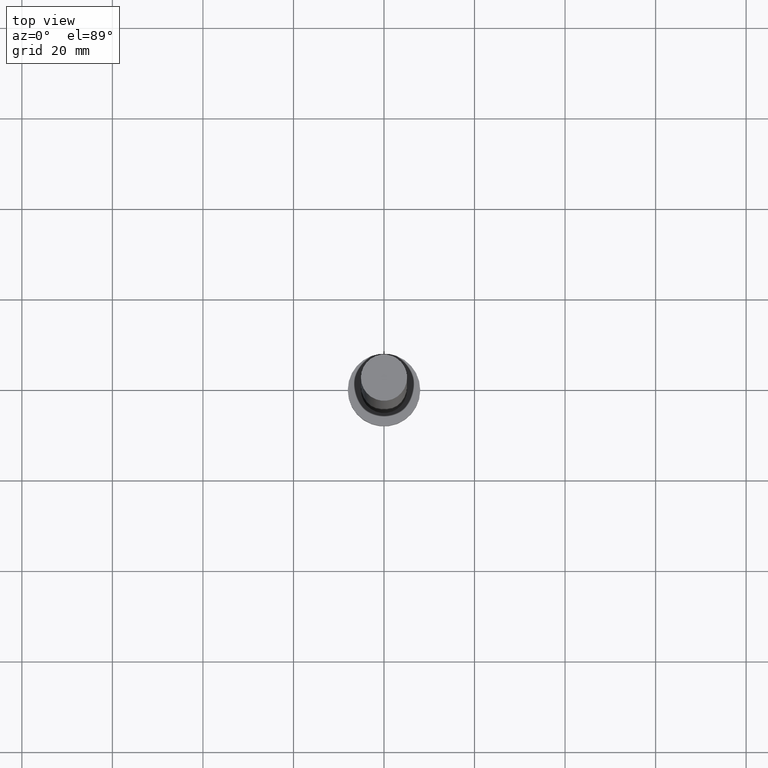
[diagram: clean part render]
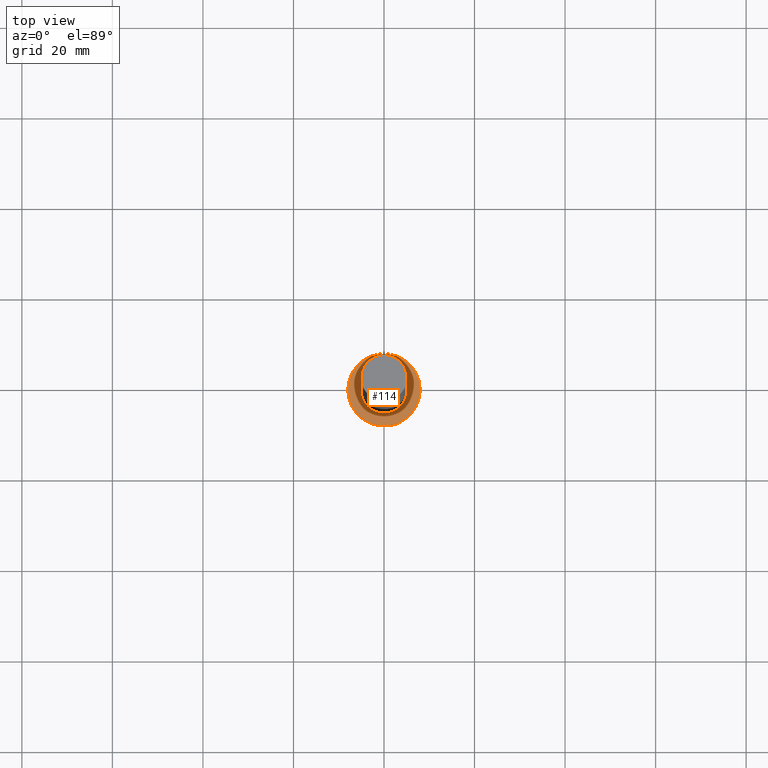
[diagram: same view with one face highlighted and labeled with its STEP entity id]
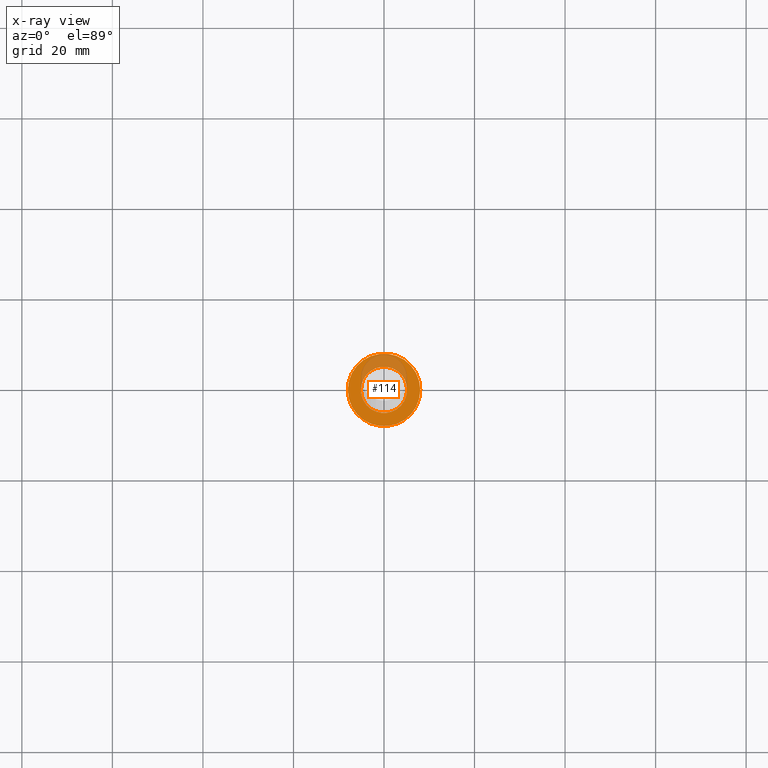
[diagram: x-ray of the same camera — body ghosted, the highlighted face saturated]
A machine part, top view. The second image highlights one B-rep face of the part: STEP entity #114.
The next image is the same camera in x-ray: the body ghosted, the highlighted face saturated — about 23% of this face is hidden behind the body in this view.
In plain terms, the highlighted planar face has unit normal (0, 0, 1).
Its self-contained STEP definition (entity closure, byte-faithful):
#12 = DIRECTION ( 'NONE',  ( 1.000000000000000000, 0.000000000000000000, 0.000000000000000000 ) ) ;
#14 = EDGE_LOOP ( 'NONE', ( #113, #178 ) ) ;
#18 = VERTEX_POINT ( 'NONE', #121 ) ;
#28 = AXIS2_PLACEMENT_3D ( 'NONE', #146, #196, #217 ) ;
#29 = AXIS2_PLACEMENT_3D ( 'NONE', #88, #164, #12 ) ;
#42 = DIRECTION ( 'NONE',  ( 1.000000000000000000, 0.000000000000000000, -0.000000000000000000 ) ) ;
#46 = CARTESIAN_POINT ( 'NONE',  ( 0.000000000000000000, 0.000000000000000000, 5.000000000000000000 ) ) ;
#48 = AXIS2_PLACEMENT_3D ( 'NONE', #65, #87, #83 ) ;
#62 = PLANE ( 'NONE',  #191 ) ;
#65 = CARTESIAN_POINT ( 'NONE',  ( 0.000000000000000000, 0.000000000000000000, 5.000000000000000000 ) ) ;
#67 = CARTESIAN_POINT ( 'NONE',  ( -5.100000000000001421, 0.000000000000000000, 5.000000000000000000 ) ) ;
#80 = EDGE_LOOP ( 'NONE', ( #175, #209 ) ) ;
#81 = AXIS2_PLACEMENT_3D ( 'NONE', #224, #219, #197 ) ;
#83 = DIRECTION ( 'NONE',  ( 1.000000000000000000, 0.000000000000000000, 0.000000000000000000 ) ) ;
#87 = DIRECTION ( 'NONE',  ( 0.000000000000000000, 0.000000000000000000, 1.000000000000000000 ) ) ;
#88 = CARTESIAN_POINT ( 'NONE',  ( 0.000000000000000000, 0.000000000000000000, 5.000000000000000000 ) ) ;
#98 = VERTEX_POINT ( 'NONE', #67 ) ;
#99 = CIRCLE ( 'NONE', #81, 8.000000000000000000 ) ;
#100 = EDGE_CURVE ( 'NONE', #98, #18, #249, .T. ) ;
#105 = EDGE_CURVE ( 'NONE', #18, #98, #161, .T. ) ;
#113 = ORIENTED_EDGE ( 'NONE', *, *, #100, .F. ) ;
#114 = ADVANCED_FACE ( 'NONE', ( #165, #200 ), #62, .T. ) ;
#121 = CARTESIAN_POINT ( 'NONE',  ( 5.100000000000001421, 6.245698675651502811E-16, 5.000000000000000000 ) ) ;
#143 = CARTESIAN_POINT ( 'NONE',  ( 8.000000000000000000, 9.797174393178825657E-16, 5.000000000000000000 ) ) ;
#146 = CARTESIAN_POINT ( 'NONE',  ( 0.000000000000000000, 0.000000000000000000, 5.000000000000000000 ) ) ;
#159 = VERTEX_POINT ( 'NONE', #143 ) ;
#161 = CIRCLE ( 'NONE', #48, 5.100000000000001421 ) ;
#164 = DIRECTION ( 'NONE',  ( 0.000000000000000000, 0.000000000000000000, 1.000000000000000000 ) ) ;
#165 = FACE_BOUND ( 'NONE', #14, .T. ) ;
#170 = CARTESIAN_POINT ( 'NONE',  ( -8.000000000000000000, 0.000000000000000000, 5.000000000000000000 ) ) ;
#175 = ORIENTED_EDGE ( 'NONE', *, *, #220, .T. ) ;
#178 = ORIENTED_EDGE ( 'NONE', *, *, #105, .F. ) ;
#191 = AXIS2_PLACEMENT_3D ( 'NONE', #46, #218, #42 ) ;
#196 = DIRECTION ( 'NONE',  ( 0.000000000000000000, 0.000000000000000000, 1.000000000000000000 ) ) ;
#197 = DIRECTION ( 'NONE',  ( 1.000000000000000000, 0.000000000000000000, 0.000000000000000000 ) ) ;
#200 = FACE_OUTER_BOUND ( 'NONE', #80, .T. ) ;
#207 = EDGE_CURVE ( 'NONE', #159, #230, #99, .T. ) ;
#209 = ORIENTED_EDGE ( 'NONE', *, *, #207, .T. ) ;
#211 = CIRCLE ( 'NONE', #29, 8.000000000000000000 ) ;
#217 = DIRECTION ( 'NONE',  ( 1.000000000000000000, 0.000000000000000000, 0.000000000000000000 ) ) ;
#218 = DIRECTION ( 'NONE',  ( 0.000000000000000000, 0.000000000000000000, 1.000000000000000000 ) ) ;
#219 = DIRECTION ( 'NONE',  ( 0.000000000000000000, 0.000000000000000000, 1.000000000000000000 ) ) ;
#220 = EDGE_CURVE ( 'NONE', #230, #159, #211, .T. ) ;
#224 = CARTESIAN_POINT ( 'NONE',  ( 0.000000000000000000, 0.000000000000000000, 5.000000000000000000 ) ) ;
#230 = VERTEX_POINT ( 'NONE', #170 ) ;
#249 = CIRCLE ( 'NONE', #28, 5.100000000000001421 ) ;